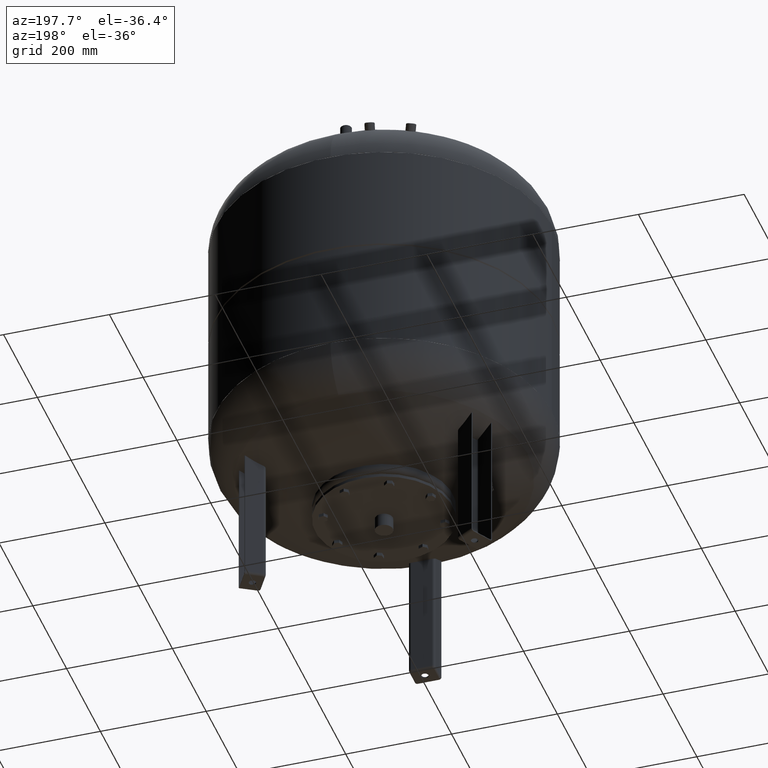
[diagram: clean part render]
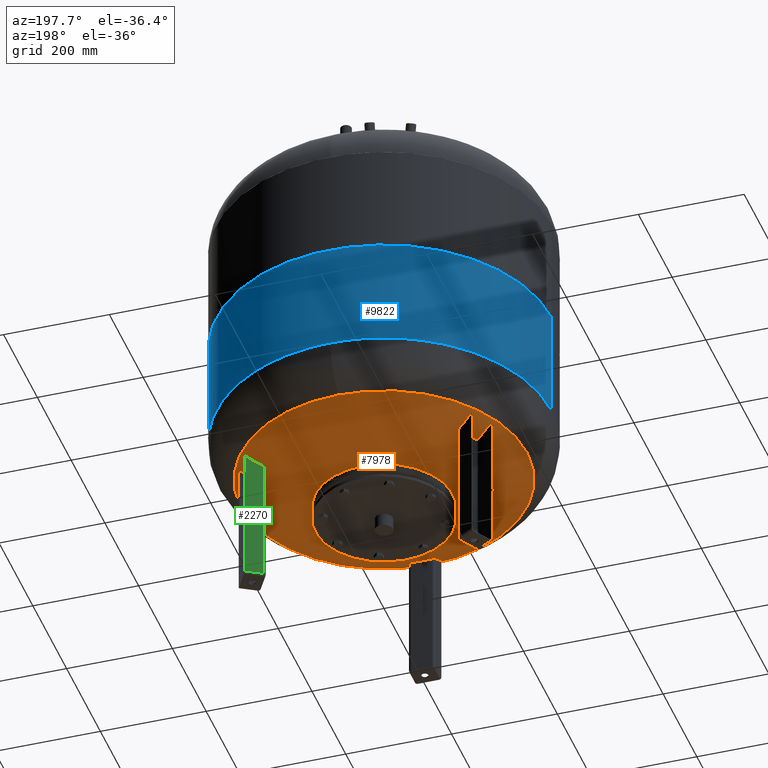
[diagram: same view with three faces highlighted in distinct colors, each labeled with its STEP entity id]
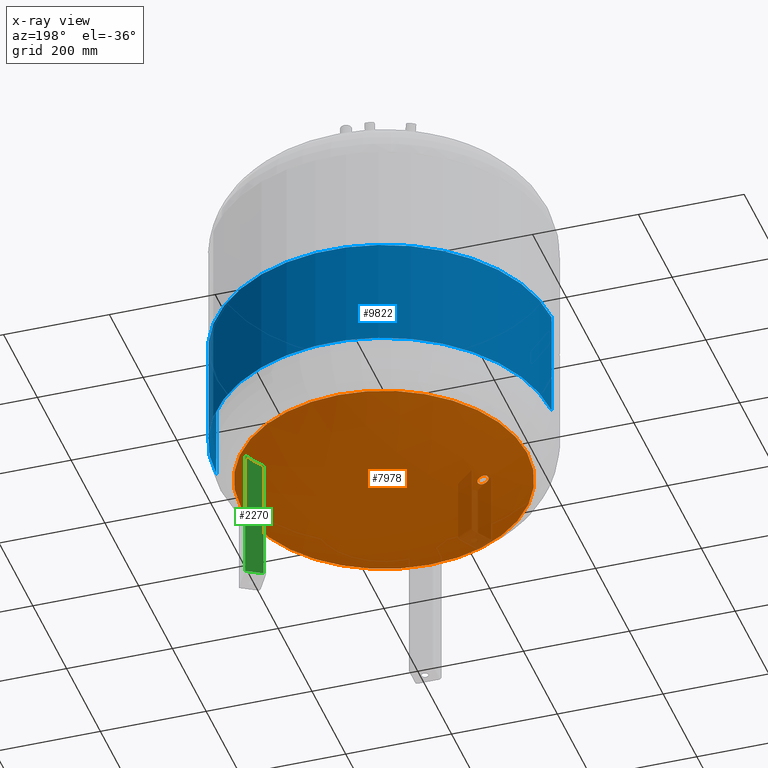
[diagram: x-ray of the same camera — body ghosted, the three highlighted faces saturated]
A machine part, auxiliary view with three faces highlighted in distinct colors.
The next image is the same camera in x-ray (body ghosted, the three faces saturated) — at least one of them is partly hidden behind the body in this view.
Their STEP definitions:

[orange] entity #7978 — the highlighted spherical surface has radius 509 mm.
#7364=CARTESIAN_POINT('',(-187.238389626334370,10.650000000000000,225.809379900513020));
#7365=VERTEX_POINT('',#7364);
#7381=CARTESIAN_POINT('',(-187.238389626334420,-10.650000000000002,225.809379900512970));
#7382=VERTEX_POINT('',#7381);
#7389=CARTESIAN_POINT('',(-187.238389626334420,-10.650000000000002,225.809379900512970));
#7390=CARTESIAN_POINT('',(-187.867209448534140,-10.650000000000002,226.058199733097640));
#7391=CARTESIAN_POINT('',(-188.517721605463380,-10.585957076975264,226.315634924702980));
#7392=CARTESIAN_POINT('',(-189.812263995729040,-10.315832103595302,226.828007101211770));
#7393=CARTESIAN_POINT('',(-190.456304597742640,-10.109807369713458,227.082948104808280));
#7394=CARTESIAN_POINT('',(-191.692113011021090,-9.564321002260520,227.572196822604100));
#7395=CARTESIAN_POINT('',(-192.284846397407310,-9.224429944120882,227.806886576268970));
#7396=CARTESIAN_POINT('',(-193.381441772739090,-8.437971256253736,228.241122209264200));
#7397=CARTESIAN_POINT('',(-193.885270373891870,-7.991349599134996,228.440654551091430));
#7398=CARTESIAN_POINT('',(-194.772055505309910,-7.043755895435094,228.791877523132200));
#7399=CARTESIAN_POINT('',(-195.186293233714620,-6.511494008839279,228.955957379109610));
#7400=CARTESIAN_POINT('',(-195.917088719321550,-5.351911905827102,229.245444928277490));
#7401=CARTESIAN_POINT('',(-196.233687342181900,-4.724621400438287,229.370868467525720));
#7402=CARTESIAN_POINT('',(-196.742446847920230,-3.415554899884625,229.572426382672010));
#7403=CARTESIAN_POINT('',(-196.935017448980550,-2.732716689899132,229.648722853021100));
#7404=CARTESIAN_POINT('',(-197.187703109743150,-1.359065558349900,229.748838167927770));
#7405=CARTESIAN_POINT('',(-197.247763737421560,-0.668241048524795,229.772635388145370));
#7406=CARTESIAN_POINT('',(-197.247763737421560,0.668241048524845,229.772635388145370));
#7407=CARTESIAN_POINT('',(-197.187703109743150,1.359065558349955,229.748838167927770));
#7408=CARTESIAN_POINT('',(-196.935017448980550,2.732716689899183,229.648722853021100));
#7409=CARTESIAN_POINT('',(-196.742446847920180,3.415554899884659,229.572426382672010));
#7410=CARTESIAN_POINT('',(-196.233687342181840,4.724621400438320,229.370868467525700));
#7411=CARTESIAN_POINT('',(-195.917088719321470,5.351911905827135,229.245444928277550));
#7412=CARTESIAN_POINT('',(-195.186293233714510,6.511494008839307,228.955957379109630));
#7413=CARTESIAN_POINT('',(-194.772055505309850,7.043755895435125,228.791877523132200));
#7414=CARTESIAN_POINT('',(-193.885270373891810,7.991349599135019,228.440654551091430));
#7415=CARTESIAN_POINT('',(-193.381441772739010,8.437971256253766,228.241122209264200));
#7416=CARTESIAN_POINT('',(-192.284846397407220,9.224429944120899,227.806886576268970));
#7417=CARTESIAN_POINT('',(-191.692113011021090,9.564321002260524,227.572196822604100));
#7418=CARTESIAN_POINT('',(-190.456304597742640,10.109807369713455,227.082948104808280));
#7419=CARTESIAN_POINT('',(-189.812263995729040,10.315832103595300,226.828007101211770));
#7420=CARTESIAN_POINT('',(-188.517721605463380,10.585957076975264,226.315634924702980));
#7421=CARTESIAN_POINT('',(-187.867209448534140,10.650000000000002,226.058199733097580));
#7422=CARTESIAN_POINT('',(-187.238389626334420,10.650000000000000,225.809379900512910));
#7423=B_SPLINE_CURVE_WITH_KNOTS('',3,(#7389,#7390,#7391,#7392,#7393,#7394,#7395,#7396,#7397,#7398,#7399,#7400,#7401,#7402,#7403,#7404,#7405,#7406,#7407,#7408,#7409,#7410,#7411,#7412,#7413,#7414,#7415,#7416,#7417,#7418,#7419,#7420,#7421,#7422),.UNSPECIFIED.,.F.,.U.,(4,2,2,2,2,2,2,2,2,2,2,2,2,2,2,2,4),(32.268932085717154,34.297707849794776,36.326483613872405,38.355259377950034,40.384035142027656,42.388758287602116,44.393481433176568,46.398204578751020,48.402927724325480,50.407650869899939,52.412374015474391,54.417097161048844,56.421820306623303,58.450596070700911,60.479371834778526,62.508147598856141,64.536923362933749),.UNSPECIFIED.);
#7424=EDGE_CURVE('',#7382,#7365,#7423,.T.);
#7877=CARTESIAN_POINT('',(8.065826E-015,-270.639024390243830,267.913560318702370));
#7878=VERTEX_POINT('',#7877);
#7894=CARTESIAN_POINT('',(-2.507680E-014,270.639024390243830,267.913560318702480));
#7895=VERTEX_POINT('',#7894);
#7903=CARTESIAN_POINT('',(-270.639024390243830,-1.431249E-014,267.913560318702420));
#7904=VERTEX_POINT('',#7903);
#7905=CARTESIAN_POINT('',(-7.495146E-015,-1.431249E-014,267.913560318702420));
#7906=DIRECTION('',(0.0,0.0,1.0));
#7907=DIRECTION('',(-1.0,0.0,0.0));
#7908=AXIS2_PLACEMENT_3D('',#7905,#7906,#7907);
#7909=CIRCLE('',#7908,270.639024390243830);
#7910=EDGE_CURVE('',#7895,#7904,#7909,.T.);
#7912=CARTESIAN_POINT('',(-7.495146E-015,-1.431249E-014,267.913560318702420));
#7913=DIRECTION('',(0.0,0.0,1.0));
#7914=DIRECTION('',(-1.0,0.0,0.0));
#7915=AXIS2_PLACEMENT_3D('',#7912,#7913,#7914);
#7916=CIRCLE('',#7915,270.639024390243830);
#7917=EDGE_CURVE('',#7904,#7878,#7916,.T.);
#7922=CARTESIAN_POINT('',(-1.005746E-013,-9.350178E-014,699.0));
#7923=DIRECTION('',(0.0,-1.0,0.0));
#7924=DIRECTION('',(1.0,0.0,0.0));
#7925=AXIS2_PLACEMENT_3D('',#7922,#7923,#7924);
#7926=SPHERICAL_SURFACE('',#7925,509.000000000000060);
#7927=ORIENTED_EDGE('',*,*,#7917,.F.);
#7928=ORIENTED_EDGE('',*,*,#7910,.F.);
#7929=CARTESIAN_POINT('',(-7.495146E-015,-1.431249E-014,267.913560318702420));
#7930=DIRECTION('',(0.0,0.0,1.0));
#7931=DIRECTION('',(-1.0,0.0,0.0));
#7932=AXIS2_PLACEMENT_3D('',#7929,#7930,#7931);
#7933=CIRCLE('',#7932,270.639024390243830);
#7934=EDGE_CURVE('',#7878,#7895,#7933,.T.);
#7935=ORIENTED_EDGE('',*,*,#7934,.F.);
#7936=EDGE_LOOP('',(#7927,#7928,#7935));
#7937=FACE_OUTER_BOUND('',#7936,.T.);
#7938=CARTESIAN_POINT('',(-187.238389626334400,10.650000000000000,225.809379900512970));
#7939=CARTESIAN_POINT('',(-186.609537071832020,10.649999999999999,225.560547115973180));
#7940=CARTESIAN_POINT('',(-185.958970466003820,10.585950522055082,225.303154073754000));
#7941=CARTESIAN_POINT('',(-184.664271867089130,10.315807762079197,224.790981009725270));
#7942=CARTESIAN_POINT('',(-184.020129530347620,10.109771964531923,224.536196816973760));
#7943=CARTESIAN_POINT('',(-182.784079835910570,9.564264568428335,224.047348576464120));
#7944=CARTESIAN_POINT('',(-182.191207102035090,9.224363833652824,223.812902509374420));
#7945=CARTESIAN_POINT('',(-181.094315763666150,8.437887956857111,223.379191687417180));
#7946=CARTESIAN_POINT('',(-180.590330784928280,7.991258761845300,223.179939910388470));
#7947=CARTESIAN_POINT('',(-179.703264686391090,7.043670431524674,222.829263899181370));
#7948=CARTESIAN_POINT('',(-179.288886631897920,6.511423430293553,222.665467212743580));
#7949=CARTESIAN_POINT('',(-178.557820047193960,5.351869173695352,222.376508104363860));
#7950=CARTESIAN_POINT('',(-178.241090955694770,4.724591573289192,222.251329303511400));
#7951=CARTESIAN_POINT('',(-177.732110737087420,3.415545126082299,222.050176490324130));
#7952=CARTESIAN_POINT('',(-177.539449864371160,2.732713874402110,221.974040313875240));
#7953=CARTESIAN_POINT('',(-177.286643290323500,1.359069426587416,221.874136900047570));
#7954=CARTESIAN_POINT('',(-177.226552113562380,0.668244633630197,221.850391149758080));
#7955=CARTESIAN_POINT('',(-177.226552113562380,-0.670153546453979,221.850391149758080));
#7956=CARTESIAN_POINT('',(-177.286986715057200,-1.362887335469278,221.874272606799050));
#7957=CARTESIAN_POINT('',(-177.541173251040960,-2.740110190590531,221.974721364084900));
#7958=CARTESIAN_POINT('',(-177.734869933532540,-3.424611041664218,222.051266890745130));
#7959=CARTESIAN_POINT('',(-178.246519536214010,-4.736551990806882,222.253474775049770));
#7960=CARTESIAN_POINT('',(-178.564886336082310,-5.365061885242834,222.379300933091970));
#7961=CARTESIAN_POINT('',(-179.299674101309930,-6.526499920180268,222.669731209285290));
#7962=CARTESIAN_POINT('',(-179.716136193232190,-7.059397888780785,222.834351933070050));
#7963=CARTESIAN_POINT('',(-180.605077672948540,-8.004952839624982,223.185770026934280));
#7964=CARTESIAN_POINT('',(-181.108442079233010,-8.449348342536339,223.384776856163460));
#7965=CARTESIAN_POINT('',(-182.203549989380580,-9.231849381453744,223.817783272345850));
#7966=CARTESIAN_POINT('',(-182.795260368424780,-9.570008347663926,224.051770076652590));
#7967=CARTESIAN_POINT('',(-184.028590073866580,-10.112683408784751,224.539543217821010));
#7968=CARTESIAN_POINT('',(-184.671168120136910,-10.317624439739280,224.793708939731690));
#7969=CARTESIAN_POINT('',(-185.962523650702310,-10.586311081735548,225.304559864448350));
#7970=CARTESIAN_POINT('',(-186.611311307451980,-10.650000000000002,225.561249169239260));
#7971=CARTESIAN_POINT('',(-187.238389626334420,-10.650000000000002,225.809379900512970));
#7972=B_SPLINE_CURVE_WITH_KNOTS('',3,(#7938,#7939,#7940,#7941,#7942,#7943,#7944,#7945,#7946,#7947,#7948,#7949,#7950,#7951,#7952,#7953,#7954,#7955,#7956,#7957,#7958,#7959,#7960,#7961,#7962,#7963,#7964,#7965,#7966,#7967,#7968,#7969,#7970,#7971),.UNSPECIFIED.,.F.,.U.,(4,2,2,2,2,2,2,2,2,2,2,2,2,2,2,2,4),(0.0,2.028881369053866,4.057762738107732,6.086644107161598,8.115525476215463,10.120259377106127,12.124993277996790,14.129727178887453,16.134461079778116,18.144921719139980,20.155382358501839,22.165842997863699,24.176303637225558,26.199460749348457,28.222617861471356,30.245774973594255,32.268932085717154),.UNSPECIFIED.);
#7973=EDGE_CURVE('',#7365,#7382,#7972,.T.);
#7974=ORIENTED_EDGE('',*,*,#7973,.F.);
#7975=ORIENTED_EDGE('',*,*,#7424,.F.);
#7976=EDGE_LOOP('',(#7974,#7975));
#7977=FACE_BOUND('',#7976,.T.);
#7978=ADVANCED_FACE('',(#7937,#7977),#7926,.T.);

[blue] entity #9822 — the highlighted cylindrical surface (partial cylindrical patch) has radius 317 mm, axis along (-0, 0, -1).
#9781=CARTESIAN_POINT('',(-4.392344E-015,1.021843E-030,456.0));
#9782=DIRECTION('',(-4.223408E-017,9.825415E-033,-1.0));
#9783=DIRECTION('',(1.0,0.0,0.0));
#9784=AXIS2_PLACEMENT_3D('',#9781,#9782,#9783);
#9785=CYLINDRICAL_SURFACE('',#9784,317.0);
#9786=CARTESIAN_POINT('',(317.0,3.882130E-014,352.0));
#9787=VERTEX_POINT('',#9786);
#9788=CARTESIAN_POINT('',(316.999999999999940,3.882130E-014,560.0));
#9789=VERTEX_POINT('',#9788);
#9790=CARTESIAN_POINT('',(317.0,3.882130E-014,352.0));
#9791=DIRECTION('',(0.0,0.0,1.0));
#9792=VECTOR('',#9791,208.0);
#9793=LINE('',#9790,#9792);
#9794=EDGE_CURVE('',#9787,#9789,#9793,.T.);
#9795=ORIENTED_EDGE('',*,*,#9794,.F.);
#9796=CARTESIAN_POINT('',(-317.0,-1.282117E-018,352.0));
#9797=VERTEX_POINT('',#9796);
#9798=CARTESIAN_POINT('',(-8.784689E-015,2.043686E-030,352.0));
#9799=DIRECTION('',(0.0,0.0,-1.0));
#9800=DIRECTION('',(1.0,0.0,0.0));
#9801=AXIS2_PLACEMENT_3D('',#9798,#9799,#9800);
#9802=CIRCLE('',#9801,317.0);
#9803=EDGE_CURVE('',#9797,#9787,#9802,.T.);
#9804=ORIENTED_EDGE('',*,*,#9803,.F.);
#9805=CARTESIAN_POINT('',(-317.0,-1.282117E-018,560.000000000000110));
#9806=VERTEX_POINT('',#9805);
#9807=CARTESIAN_POINT('',(-317.0,-1.282117E-018,352.0));
#9808=DIRECTION('',(0.0,0.0,1.0));
#9809=VECTOR('',#9808,208.000000000000110);
#9810=LINE('',#9807,#9809);
#9811=EDGE_CURVE('',#9797,#9806,#9810,.T.);
#9812=ORIENTED_EDGE('',*,*,#9811,.T.);
#9813=CARTESIAN_POINT('',(-4.065149E-031,4.830380E-046,560.0));
#9814=DIRECTION('',(0.0,0.0,-1.0));
#9815=DIRECTION('',(1.0,0.0,0.0));
#9816=AXIS2_PLACEMENT_3D('',#9813,#9814,#9815);
#9817=CIRCLE('',#9816,316.999999999999940);
#9818=EDGE_CURVE('',#9806,#9789,#9817,.T.);
#9819=ORIENTED_EDGE('',*,*,#9818,.T.);
#9820=EDGE_LOOP('',(#9795,#9804,#9812,#9819));
#9821=FACE_OUTER_BOUND('',#9820,.T.);
#9822=ADVANCED_FACE('',(#9821),#9785,.T.);

[green] entity #2270 — the highlighted planar face has unit normal (-0.5, 0.866, 0).
#1332=CARTESIAN_POINT('',(213.965643089630760,152.400635094610890,274.0));
#1333=VERTEX_POINT('',#1332);
#1341=CARTESIAN_POINT('',(184.520779360959840,135.400635094610890,274.0));
#1342=VERTEX_POINT('',#1341);
#1343=CARTESIAN_POINT('',(184.520779360959840,135.400635094610890,274.0));
#1344=DIRECTION('',(0.866025403784439,0.500000000000000,0.0));
#1345=VECTOR('',#1344,34.000000000000007);
#1346=LINE('',#1343,#1345);
#1347=EDGE_CURVE('',#1342,#1333,#1346,.T.);
#1777=CARTESIAN_POINT('',(213.965643089630760,152.400635094610890,5.000000000000004));
#1778=VERTEX_POINT('',#1777);
#1805=CARTESIAN_POINT('',(213.965643089630760,152.400635094610890,5.000000000000004));
#1806=DIRECTION('',(0.0,0.0,1.0));
#1807=VECTOR('',#1806,269.0);
#1808=LINE('',#1805,#1807);
#1809=EDGE_CURVE('',#1778,#1333,#1808,.T.);
#2005=CARTESIAN_POINT('',(184.520779360959840,135.400635094610920,5.000000000000004));
#2006=VERTEX_POINT('',#2005);
#2014=CARTESIAN_POINT('',(184.520779360959840,135.400635094610920,5.000000000000004));
#2015=DIRECTION('',(0.866025403784439,0.499999999999999,0.0));
#2016=VECTOR('',#2015,33.999999999999993);
#2017=LINE('',#2014,#2016);
#2018=EDGE_CURVE('',#2006,#1778,#2017,.T.);
#2140=CARTESIAN_POINT('',(184.520779360959840,135.400635094610920,5.000000000000004));
#2141=DIRECTION('',(0.0,0.0,1.0));
#2142=VECTOR('',#2141,269.0);
#2143=LINE('',#2140,#2142);
#2144=EDGE_CURVE('',#2006,#1342,#2143,.T.);
#2259=CARTESIAN_POINT('',(180.190652342037650,132.900635094610920,4.592425E-015));
#2260=DIRECTION('',(-0.500000000000000,0.866025403784439,1.836970E-016));
#2261=DIRECTION('',(-0.866025403784439,-0.500000000000000,-2.039447E-032));
#2262=AXIS2_PLACEMENT_3D('',#2259,#2260,#2261);
#2263=PLANE('',#2262);
#2264=ORIENTED_EDGE('',*,*,#1809,.F.);
#2265=ORIENTED_EDGE('',*,*,#2018,.F.);
#2266=ORIENTED_EDGE('',*,*,#2144,.T.);
#2267=ORIENTED_EDGE('',*,*,#1347,.T.);
#2268=EDGE_LOOP('',(#2264,#2265,#2266,#2267));
#2269=FACE_OUTER_BOUND('',#2268,.T.);
#2270=ADVANCED_FACE('',(#2269),#2263,.T.);